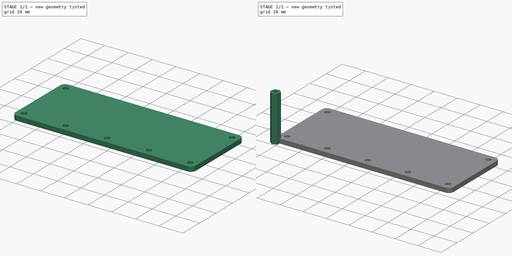
[diagram: build sequence overview — one tinted view per stage of 2, left to right]
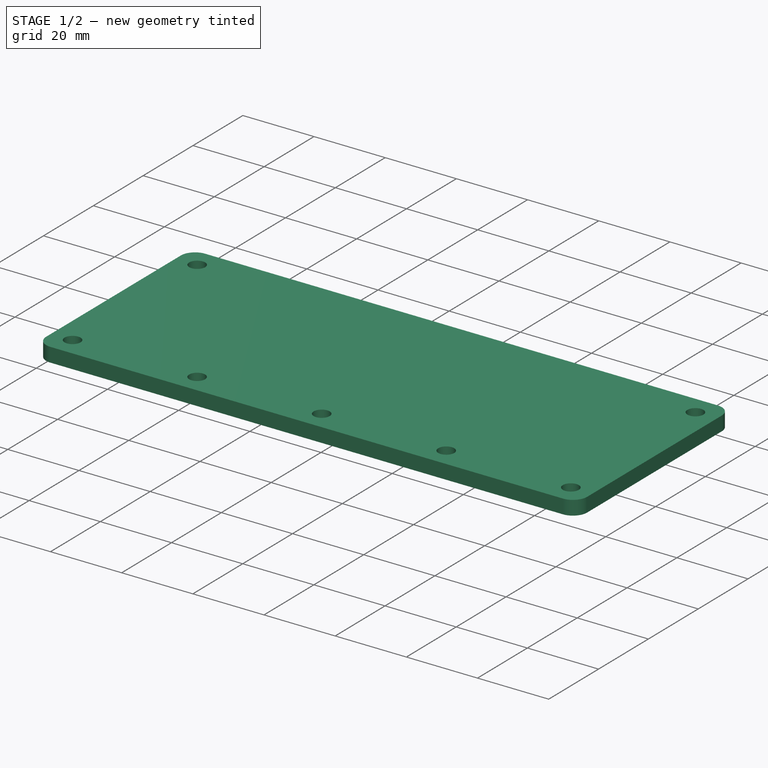
[diagram: stage 1 of 2 — iso view after this stage's code; geometry added in this stage tinted green]
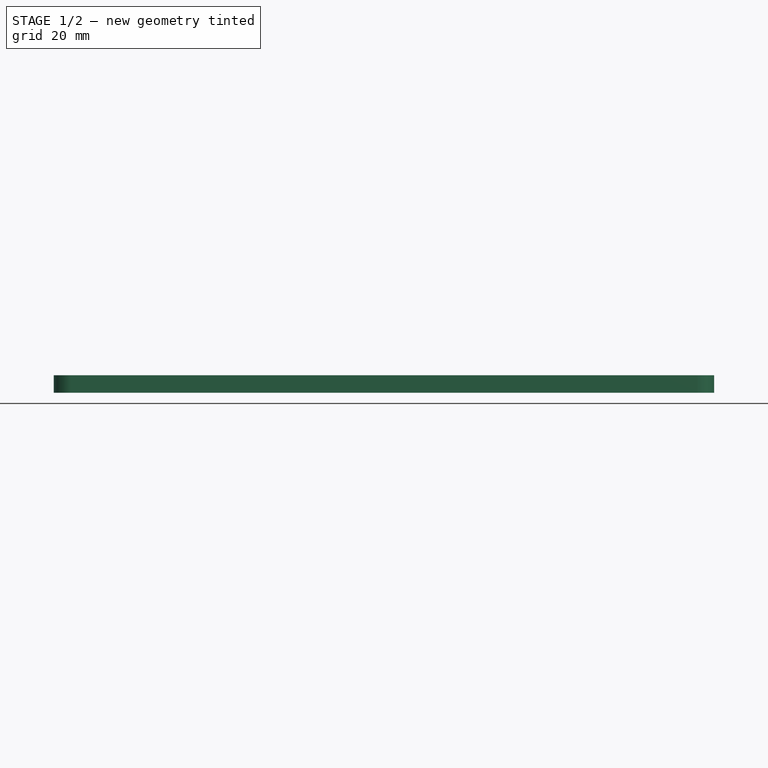
[diagram: stage 1 of 2 — front view after this stage's code; geometry added in this stage tinted green]
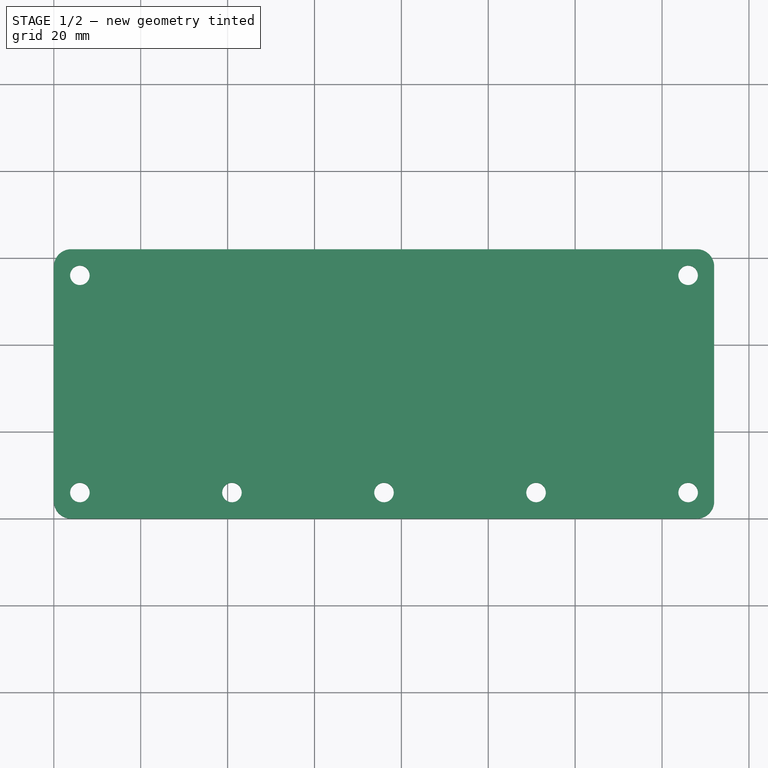
[diagram: stage 1 of 2 — top view after this stage's code; geometry added in this stage tinted green]
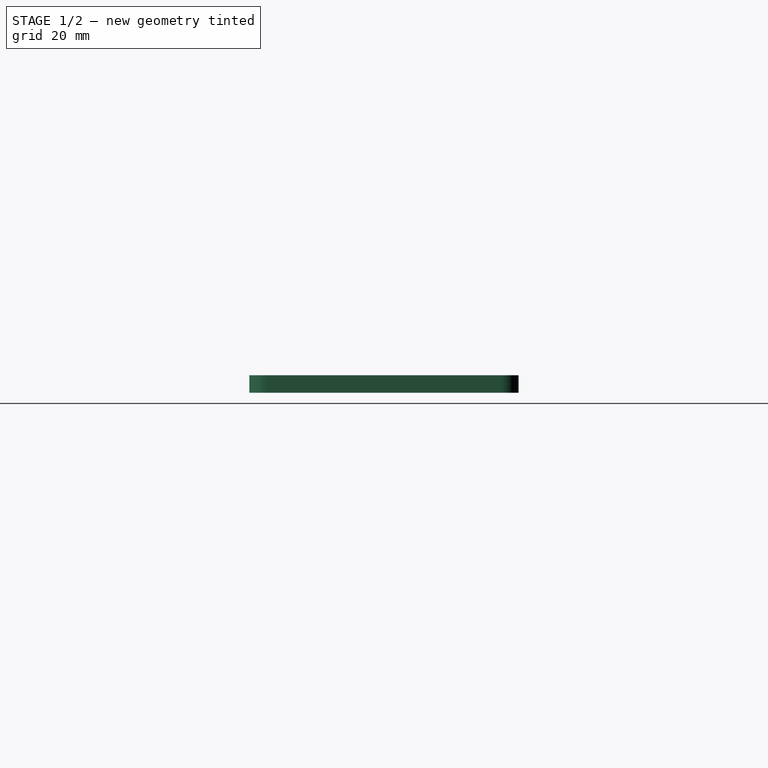
[diagram: stage 1 of 2 — right view after this stage's code; geometry added in this stage tinted green]
FCSTD DOCUMENT  (FreeCAD 0.19R)
Label: Casing
License: All rights reserved
LicenseURL: http://en.wikipedia.org/wiki/All_rights_reserved
objects: Part::Feature×11, App::Part×11, App::Link×6, PartDesign::Body×4, Sketcher::SketchObject×3, PartDesign::Pad×3, TechDraw::DrawSVGTemplate×2, TechDraw::DrawProjGroupItem×2, TechDraw::DrawProjGroup×2, TechDraw::DrawPage×2
note: 24 computed .brp shape members not serialized (recipe doc carries the construction recipe); baked Part::Feature solids carry a one-line shape summary decoded from their .brp

FEATURE [Sketcher::SketchObject] Sketch
  FullyConstrained = true
  MapMode = 5
  Support = -> [XY_Plane011]
  sketch-geometry (20):
    g0: LineSegment StartX=1.24452e-11 StartY=58 StartZ=0 EndX=1.24452e-11 EndY=4 EndZ=0
    g1: Circle CenterX=6 CenterY=56 CenterZ=0 NormalX=0 NormalY=0 NormalZ=1 AngleXU=0 Radius=2.25
    g2: LineSegment StartX=4 StartY=62 StartZ=0 EndX=148 EndY=62 EndZ=0
    g3: ArcOfCircle CenterX=4 CenterY=58 CenterZ=0 NormalX=0 NormalY=0 NormalZ=1 AngleXU=0 Radius=4 StartAngle=1.5708 EndAngle=3.14159
    g4: Circle CenterX=6 CenterY=6 CenterZ=0 NormalX=0 NormalY=0 NormalZ=1 AngleXU=0 Radius=2.25
    g5: LineSegment StartX=4 StartY=0 StartZ=0 EndX=148 EndY=0 EndZ=0
    g6: ArcOfCircle CenterX=4 CenterY=4 CenterZ=0 NormalX=0 NormalY=0 NormalZ=1 AngleXU=0 Radius=4 StartAngle=3.14159 EndAngle=4.71239
    g7: LineSegment StartX=152 StartY=58 StartZ=0 EndX=152 EndY=4 EndZ=0
    g8: ArcOfCircle CenterX=148 CenterY=58 CenterZ=0 NormalX=0 NormalY=0 NormalZ=1 AngleXU=0 Radius=4 StartAngle=7e-16 EndAngle=1.5708
    g9: ArcOfCircle CenterX=148 CenterY=4 CenterZ=0 NormalX=0 NormalY=0 NormalZ=1 AngleXU=0 Radius=4 StartAngle=4.71239 EndAngle=6.28319
    g10: Circle CenterX=146 CenterY=56 CenterZ=0 NormalX=0 NormalY=0 NormalZ=1 AngleXU=0 Radius=2.25
    g11: Circle CenterX=146 CenterY=6 CenterZ=0 NormalX=0 NormalY=0 NormalZ=1 AngleXU=0 Radius=2.25
    g12: Circle CenterX=76 CenterY=6 CenterZ=0 NormalX=0 NormalY=0 NormalZ=1 AngleXU=0 Radius=2.25
    g13: Circle CenterX=41 CenterY=6 CenterZ=0 NormalX=0 NormalY=0 NormalZ=1 AngleXU=0 Radius=2.25
    g14: Circle CenterX=111 CenterY=6 CenterZ=0 NormalX=0 NormalY=0 NormalZ=1 AngleXU=0 Radius=2.25
    g15: Circle CenterX=31 CenterY=23.5 CenterZ=0 NormalX=0 NormalY=0 NormalZ=1 AngleXU=0 Radius=3.5
    g16: Circle CenterX=67 CenterY=23.5 CenterZ=0 NormalX=0 NormalY=0 NormalZ=1 AngleXU=0 Radius=3.5
    g17: Circle CenterX=112 CenterY=23.5 CenterZ=0 NormalX=0 NormalY=0 NormalZ=1 AngleXU=0 Radius=3.5
    g18: LineSegment StartX=1.24452e-11 StartY=4 StartZ=0 EndX=1.24452e-11 EndY=0 EndZ=0
    g19: LineSegment StartX=4 StartY=0 StartZ=0 EndX=1.24452e-11 EndY=0 EndZ=0
  constraints (54):
    c: Diameter(g1) = 4.5
    c: Vertical(g0)
    c: Horizontal(g2)
    c: Tangent(g2,g3) = 1.5708
    c: Tangent(g0,g3) = -1.5708
    c: Radius(g3) = 4
    c: Diameter(g4) = 4.5
    c: Horizontal(g5)
    c: Tangent(g0,g6) = -1.5708
    c: Tangent(g5,g6) = -1.5708
    c: Radius(g6) = 4
    c: Distance(g4,g0) = 6
    c: DistanceY(g0,g0) = 54
    c: Vertical(g7)
    c: Tangent(g2,g8) = 1.5708
    c: Tangent(g7,g8) = 1.5708
    c: Radius(g8) = 4
    c: Tangent(g7,g9) = 1.5708
    c: Tangent(g5,g9) = -1.5708
    c: Radius(g9) = 4
    c: DistanceX(g2,g2) = 144
    c: Diameter(g10) = 4.5
    c: Diameter(g11) = 4.5
    c: Diameter(g12) = 4.5
    c: Diameter(g13) = 4.5
    c: Diameter(g14) = 4.5
    c: Distance(g15,g0) = 31
    c: Distance(g15,g5) = 23.5
    c: Diameter(g15) = 7
    c: Diameter(g16) = 7
    c: Diameter(g17) = 7
    c: Vertical(g18)
    c: Coincident(g18,g0)
    c: Horizontal(g19)
    c: Coincident(g19,g5)
    c: Coincident(g19,g18)
    c: Coincident(g-1,g18)
    c: Distance(g16,g15) = 36
    c: Distance(g16,g17) = 45
    c: Distance(g13,g12) = 35
    c: Distance(g12,g14) = 35
    c: Distance(g10,g11) = 50
    c: Distance(g1,g4) = 50
    c: Distance(g14,g11) = 35
    c: Distance(g4,g13) = 35
    c: Distance(g10,g1) = 140
    c: Vertical(g1,g4)
    c: Horizontal(g4,g13)
    c: Horizontal(g12,g13)
    c: Horizontal(g12,g14)
    c: Horizontal(g11,g14)
    c: Horizontal(g16,g15)
    c: Horizontal(g16,g17)
    c: Distance(g4,g5) = 6
FEATURE [Part::Feature] Part__Feature  label="COMPOUND"
  shape: bbox 16.59 x 34.29 x 13.34 mm, 1177 faces (baked)
FEATURE [App::Part] _301SYZQE  label="7301SYZQE"
  Group = -> [Part__Feature]
  Origin = -> Origin
  Placement = pos=(109,12.5,13.55) rot=(0.57735,0.57735,0.57735;2.0944rad)
FEATURE [Part::Feature] Part__Feature001  label="COMPOUND001"
  shape: bbox 16.59 x 34.29 x 13.34 mm, 1177 faces (baked)
FEATURE [App::Part] _301SYZQE001  label="7301SYZQE001"
  Group = -> [Part__Feature001]
  Origin = -> Origin012
  Placement = pos=(64,12.5,13.55) rot=(0.57735,0.57735,0.57735;2.0944rad)
FEATURE [Part::Feature] Part__Feature002  label="COMPOUND002"
  shape: bbox 16.59 x 34.29 x 13.34 mm, 1177 faces (baked)
FEATURE [App::Part] _301SYZQE002  label="7301SYZQE002"
  Group = -> [Part__Feature002]
  Origin = -> Origin013
  Placement = pos=(28,12.5,13.55) rot=(0.57735,0.57735,0.57735;2.0944rad)
FEATURE [Part::Feature] Part__Feature003  label="COMPOUND003"
  shape: bbox 14.02 x 9.141 x 12.02 mm, 72 faces, 7 solids (baked)
FEATURE [App::Part] FC68131
  Group = -> [Part__Feature003]
  Origin = -> Origin014
  Placement = pos=(127,35.5,-0.15) rot=(0.57735,-0.57735,0.57735;4.18879rad)
FEATURE [Part::Feature] Part__Feature004  label="COMPOUND004"
  shape: bbox 14.02 x 9.141 x 12.02 mm, 72 faces, 7 solids (baked)
FEATURE [App::Part] FC68131001
  Group = -> [Part__Feature004]
  Origin = -> Origin015
  Placement = pos=(55,35.5,-0.15) rot=(0.57735,-0.57735,0.57735;4.18879rad)
FEATURE [Part::Feature] Part__Feature005  label="COMPOUND005"
  shape: bbox 14.02 x 9.141 x 12.02 mm, 72 faces, 7 solids (baked)
FEATURE [App::Part] FC68131002
  Group = -> [Part__Feature005]
  Origin = -> Origin016
  Placement = pos=(73,35.5,-0.15) rot=(0.57735,-0.57735,0.57735;4.18879rad)
FEATURE [Part::Feature] Part__Feature006  label="COMPOUND006"
  shape: bbox 14.02 x 9.141 x 12.02 mm, 72 faces, 7 solids (baked)
FEATURE [App::Part] FC68131003
  Group = -> [Part__Feature006]
  Origin = -> Origin017
  Placement = pos=(91,35.5,-0.15) rot=(0.57735,-0.57735,0.57735;4.18879rad)
FEATURE [Part::Feature] Part__Feature007  label="COMPOUND007"
  shape: bbox 14.02 x 9.141 x 12.02 mm, 72 faces, 7 solids (baked)
FEATURE [App::Part] FC68131004
  Group = -> [Part__Feature007]
  Origin = -> Origin018
  Placement = pos=(19,35.5,-0.15) rot=(0.57735,-0.57735,0.57735;4.18879rad)
FEATURE [Part::Feature] Part__Feature008  label="COMPOUND008"
  shape: bbox 14.02 x 9.141 x 12.02 mm, 72 faces, 7 solids (baked)
FEATURE [App::Part] FC68131005
  Group = -> [Part__Feature008]
  Origin = -> Origin019
  Placement = pos=(109,35.5,-0.15) rot=(0.57735,-0.57735,0.57735;4.18879rad)
FEATURE [Part::Feature] Part__Feature009  label="COMPOUND009"
  shape: bbox 14.02 x 9.141 x 12.02 mm, 72 faces, 7 solids (baked)
FEATURE [App::Part] FC68131006
  Group = -> [Part__Feature009]
  Origin = -> Origin020
  Placement = pos=(37,35.5,-0.15) rot=(0.57735,-0.57735,0.57735;4.18879rad)
FEATURE [Part::Feature] Part__Feature010  label="Audio_Multiplexer PCB"
  shape: bbox 146 x 40 x 1.6 mm, 241 faces (baked)
FEATURE [PartDesign::Pad] Pad
  Direction = (1,1,1)
  Length = 4
  Length2 = 100
  Profile = -> Sketch
  Type = 0
FEATURE [PartDesign::Body] Body  label="Top_Plate"
  Group = -> [Sketch,Pad]
  Origin = -> Origin011
  Placement = pos=(0,0,14.5) rot=(0,0,1;0rad)
  Tip = -> Pad
FEATURE [PartDesign::Body] Body001
  Origin = -> Origin022
FEATURE [App::Part] Audio_Multiplexer_1  label="PCB"
  Group = -> [_301SYZQE,_301SYZQE001,_301SYZQE002,FC68131,FC68131001,FC68131002,FC68131003,FC68131004,FC68131005,FC68131006,Part__Feature010,Body001]
  Origin = -> Origin021
  Placement = pos=(3,11,0) rot=(0,0,1;0rad)
FEATURE [Sketcher::SketchObject] Sketch001
  FullyConstrained = true
  MapMode = 5
  Support = -> [XY_Plane023]
  sketch-geometry (21):
    g0: LineSegment StartX=0 StartY=58 StartZ=0 EndX=0 EndY=4 EndZ=0
    g1: Circle CenterX=6 CenterY=56 CenterZ=0 NormalX=0 NormalY=0 NormalZ=1 AngleXU=0 Radius=2.25
    g2: LineSegment StartX=4 StartY=62 StartZ=0 EndX=148 EndY=62 EndZ=0
    g3: ArcOfCircle CenterX=4 CenterY=58 CenterZ=0 NormalX=0 NormalY=0 NormalZ=1 AngleXU=0 Radius=4 StartAngle=1.5708 EndAngle=3.14159
    g4: Circle CenterX=6 CenterY=6 CenterZ=0 NormalX=0 NormalY=0 NormalZ=1 AngleXU=0 Radius=2.25
    g5: LineSegment StartX=4 StartY=0 StartZ=0 EndX=148 EndY=0 EndZ=0
    g6: ArcOfCircle CenterX=4 CenterY=4 CenterZ=0 NormalX=0 NormalY=0 NormalZ=1 AngleXU=0 Radius=4 StartAngle=3.14159 EndAngle=4.71239
    g7: LineSegment StartX=152 StartY=58 StartZ=0 EndX=152 EndY=4 EndZ=0
    g8: ArcOfCircle CenterX=148 CenterY=58 CenterZ=0 NormalX=0 NormalY=0 NormalZ=1 AngleXU=0 Radius=4 StartAngle=0 EndAngle=1.5708
    g9: ArcOfCircle CenterX=148 CenterY=4 CenterZ=0 NormalX=0 NormalY=0 NormalZ=1 AngleXU=0 Radius=4 StartAngle=4.71239 EndAngle=6.28319
    g10: Circle CenterX=146 CenterY=56 CenterZ=0 NormalX=0 NormalY=0 NormalZ=1 AngleXU=0 Radius=2.25
    g11: Circle CenterX=146 CenterY=6 CenterZ=0 NormalX=0 NormalY=0 NormalZ=1 AngleXU=0 Radius=2.25
    g12: Circle CenterX=76 CenterY=6 CenterZ=0 NormalX=0 NormalY=0 NormalZ=1 AngleXU=0 Radius=2.25
    g13: Circle CenterX=41 CenterY=6 CenterZ=0 NormalX=0 NormalY=0 NormalZ=1 AngleXU=0 Radius=2.25
    g14: Circle CenterX=111 CenterY=6 CenterZ=0 NormalX=0 NormalY=0 NormalZ=1 AngleXU=0 Radius=2.25
    g15: LineSegment StartX=0 StartY=4 StartZ=0 EndX=0 EndY=0 EndZ=0
    g16: LineSegment StartX=4 StartY=0 StartZ=0 EndX=0 EndY=0 EndZ=0
    g17: Circle CenterX=9.5 CenterY=17.5 CenterZ=0 NormalX=0 NormalY=0 NormalZ=1 AngleXU=0 Radius=2.25
    g18: Circle CenterX=9.5 CenterY=44.5 CenterZ=0 NormalX=0 NormalY=0 NormalZ=1 AngleXU=0 Radius=2.25
    g19: Circle CenterX=142.5 CenterY=44.5 CenterZ=0 NormalX=0 NormalY=0 NormalZ=1 AngleXU=0 Radius=2.25
    g20: Circle CenterX=142.5 CenterY=17.5 CenterZ=0 NormalX=0 NormalY=0 NormalZ=1 AngleXU=0 Radius=2.25
  constraints (57):
    c: Diameter(g1) = 4.5
    c: Vertical(g0)
    c: Horizontal(g2)
    c: Tangent(g2,g3) = 1.5708
    c: Tangent(g0,g3) = -1.5708
    c: Radius(g3) = 4
    c: Diameter(g4) = 4.5
    c: Horizontal(g5)
    c: Tangent(g0,g6) = -1.5708
    c: Tangent(g5,g6) = -1.5708
    c: Radius(g6) = 4
    c: Distance(g4,g5) = 6
    c: Distance(g4,g0) = 6
    c: DistanceY(g0,g0) = 54
    c: Vertical(g7)
    c: Tangent(g2,g8) = 1.5708
    c: Tangent(g7,g8) = 1.5708
    c: Radius(g8) = 4
    c: Tangent(g7,g9) = 1.5708
    c: Tangent(g5,g9) = -1.5708
    c: Radius(g9) = 4
    c: DistanceX(g2,g2) = 144
    c: Diameter(g10) = 4.5
    c: Diameter(g11) = 4.5
    c: Diameter(g12) = 4.5
    c: Diameter(g13) = 4.5
    c: Diameter(g14) = 4.5
    c: Vertical(g15)
    c: Coincident(g15,g0)
    c: Horizontal(g16)
    c: Coincident(g16,g5)
    c: Coincident(g15,g16)
    c: Coincident(g-1,g15)
    c: Diameter(g17) = 4.5
    c: Distance(g17,g0) = 9.5
    c: Distance(g17,g5) = 17.5
    c: Diameter(g18) = 4.5
    c: Diameter(g19) = 4.5
    c: Diameter(g20) = 4.5
    c: Distance(g4,g13) = 35
    c: Distance(g12,g13) = 35
    c: Horizontal(g4,g13)
    c: Horizontal(g13,g12)
    c: Distance(g12,g14) = 35
    c: Horizontal(g12,g14)
    c: Distance(g11,g14) = 35
    c: Horizontal(g11,g14)
    c: Distance(g10,g11) = 50
    c: Vertical(g10,g11)
    c: Distance(g20,g17) = 133
    c: Horizontal(g20,g17)
    c: Distance(g19,g20) = 27
    c: Vertical(g19,g20)
    c: Vertical(g18,g17)
    c: Horizontal(g18,g19)
    c: Vertical(g4,g1)
    c: Horizontal(g1,g10)
FEATURE [PartDesign::Pad] Pad001
  Direction = (1,1,1)
  Length = 4
  Length2 = 100
  Profile = -> Sketch001
  Type = 0
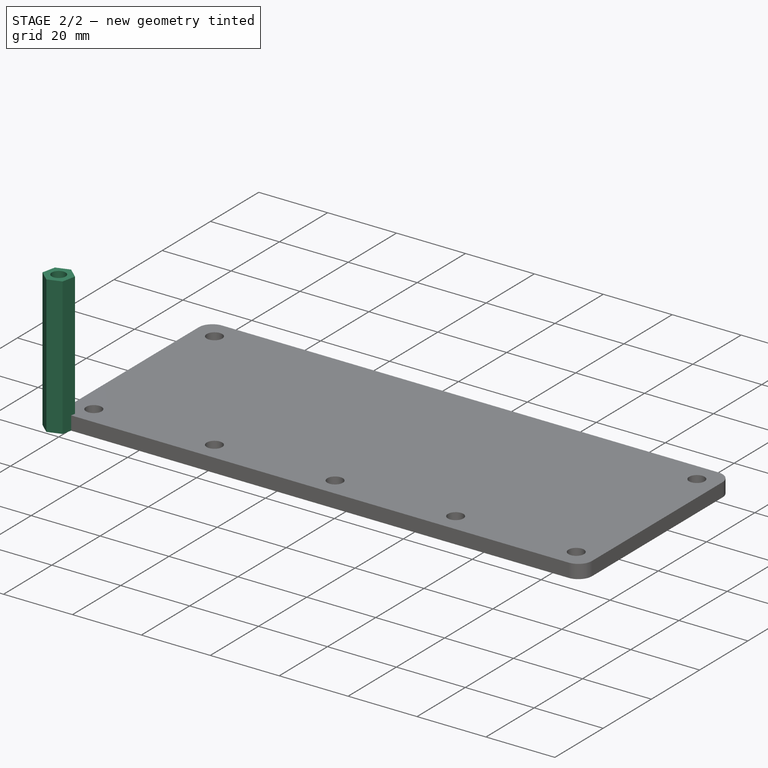
[diagram: stage 2 of 2 — iso view after this stage's code; geometry added in this stage tinted green]
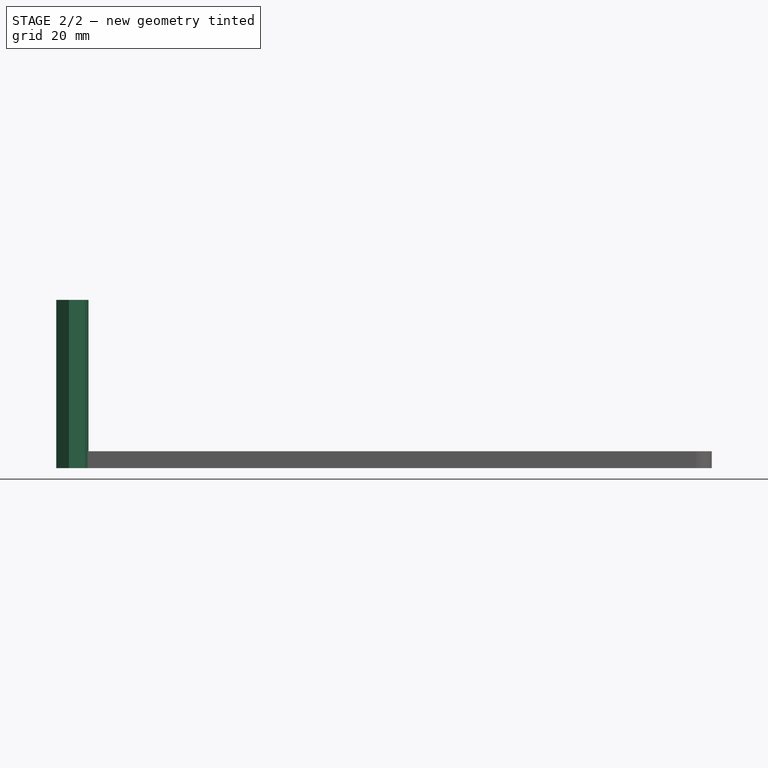
[diagram: stage 2 of 2 — front view after this stage's code; geometry added in this stage tinted green]
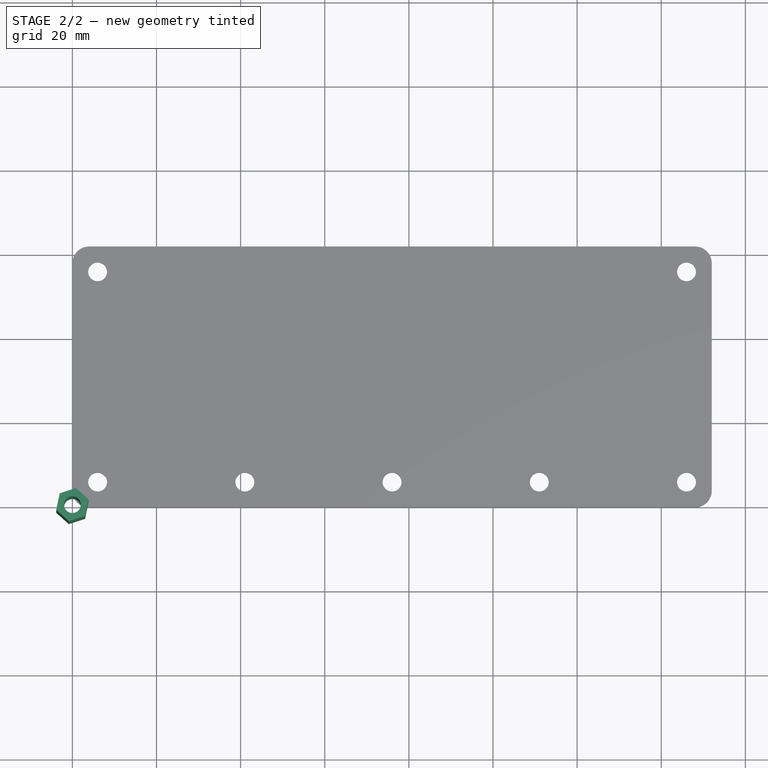
[diagram: stage 2 of 2 — top view after this stage's code; geometry added in this stage tinted green]
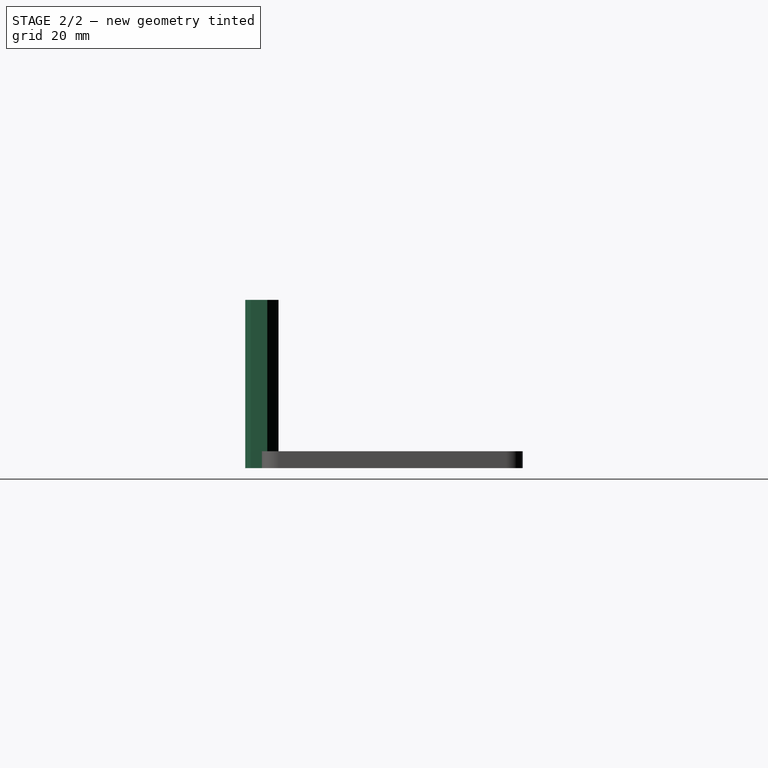
[diagram: stage 2 of 2 — right view after this stage's code; geometry added in this stage tinted green]
FEATURE [PartDesign::Body] Body002  label="Bottom_Plate"
  Group = -> [Sketch001,Pad001]
  Origin = -> Origin023
  Placement = pos=(0,0,-29.5) rot=(0,0,1;0rad)
  Tip = -> Pad001
FEATURE [Sketcher::SketchObject] Sketch002
  FullyConstrained = false
  MapMode = 5
  Support = -> [XY_Plane024]
  sketch-geometry (8):
    g0: LineSegment StartX=0.82718 StartY=3.9559 StartZ=0 EndX=-3.01232 EndY=2.69431 EndZ=0
    g1: LineSegment StartX=-3.01232 StartY=2.69431 StartZ=0 EndX=-3.8395 EndY=-1.26159 EndZ=0
    g2: LineSegment StartX=-3.8395 StartY=-1.26159 StartZ=0 EndX=-0.82718 EndY=-3.9559 EndZ=0
    g3: LineSegment StartX=-0.82718 StartY=-3.9559 StartZ=0 EndX=3.01232 EndY=-2.69431 EndZ=0
    g4: LineSegment StartX=3.01232 StartY=-2.69431 StartZ=0 EndX=3.8395 EndY=1.26159 EndZ=0
    g5: LineSegment StartX=3.8395 StartY=1.26159 StartZ=0 EndX=0.82718 EndY=3.9559 EndZ=0
    g6: Circle CenterX=-9.8e-15 CenterY=4.12e-14 CenterZ=0 NormalX=0 NormalY=0 NormalZ=1 AngleXU=0 Radius=4.04145
    g7: Circle CenterX=-9.8e-15 CenterY=4.12e-14 CenterZ=0 NormalX=0 NormalY=0 NormalZ=1 AngleXU=0 Radius=2
  constraints (17):
    c: Coincident(g0,g1)
    c: Coincident(g1,g2)
    c: Coincident(g2,g3)
    c: Coincident(g3,g4)
    c: Coincident(g4,g5)
    c: Coincident(g5,g0)
    c: Equal(g0, g1-g5) x5
    c: PointOnObject(g0,g6)
    c: PointOnObject(g1,g6)
    c: PointOnObject(g2,g6)
    c: PointOnObject(g3,g6)
    c: PointOnObject(g4,g6)
    c: PointOnObject(g5,g6)
    c: Distance(g6,g2) = 3.5
    c: Diameter(g7) = 4
    c: Coincident(g7,g6)
    c: Coincident(g7,g-1)
FEATURE [PartDesign::Pad] Pad002
  Direction = (1,1,1)
  Length = 40
  Length2 = 100
  Profile = -> Sketch002
  Type = 0
FEATURE [PartDesign::Body] Body003  label="Hex_Standoff_1"
  Group = -> [Sketch002,Pad002]
  Origin = -> Origin024
  Placement = pos=(6,6,-25.5) rot=(0,0,1;0rad)
  Tip = -> Pad002
FEATURE [App::Link] Link  label="Hex_Standoff_2"
  LinkPlacement = pos=(41,6,-25.5) rot=(0,0,1;0rad)
  LinkedObject = -> Body003
  Placement = pos=(41,6,-25.5) rot=(0,0,1;0rad)
FEATURE [App::Link] Link001  label="Hex_Standoff_3"
  LinkPlacement = pos=(76,6,-25.5) rot=(0,0,1;0rad)
  LinkedObject = -> Body003
  Placement = pos=(76,6,-25.5) rot=(0,0,1;0rad)
FEATURE [App::Link] Link002  label="Hex_Standoff_4"
  LinkPlacement = pos=(111,6,-25.5) rot=(0,0,1;0rad)
  LinkedObject = -> Body003
  Placement = pos=(111,6,-25.5) rot=(0,0,1;0rad)
FEATURE [App::Link] Link003  label="Hex_Standoff_5"
  LinkPlacement = pos=(146,6,-25.5) rot=(0,0,1;0rad)
  LinkedObject = -> Body003
  Placement = pos=(146,6,-25.5) rot=(0,0,1;0rad)
FEATURE [App::Link] Link004  label="Hex_Standoff_6"
  LinkPlacement = pos=(6,56,-25.5) rot=(0,0,1;0rad)
  LinkedObject = -> Body003
  Placement = pos=(6,56,-25.5) rot=(0,0,1;0rad)
FEATURE [App::Link] Link005  label="Hex_Standoff_7"
  LinkPlacement = pos=(146,56,-25.5) rot=(0,0,1;0rad)
  LinkedObject = -> Body003
  Placement = pos=(146,56,-25.5) rot=(0,0,1;0rad)
FEATURE [TechDraw::DrawSVGTemplate] Template
  EditableTexts = Designed_by_Name=Adrien RICCIARDI; Drawing_number=1; FC-Date=15/08/2022; FC-SC=1:1; FC-SH=1/2; FC-Title=Audio Multiplexer; Subtitle=Casing top plate; Weight=0.284
  Height = 210
  Orientation = 1
  Width = 297
FEATURE [TechDraw::DrawProjGroupItem] ProjItem  label="Front"
  CoarseView = false
  Direction = (0,0,1)
  Focus = 100
  HardHidden = false
  IsoCount = 0
  IsoHidden = false
  IsoVisible = false
  LockPosition = true
  Perspective = false
  Rotation = 0
  RotationVector = (1,0,0)
  ScaleType = 2
  SeamHidden = false
  SeamVisible = true
  SmoothHidden = false
  SmoothVisible = true
  Source = -> [Body]
  Type = 0
  X = 0
  XDirection = (1,0,0)
  Y = 0
FEATURE [TechDraw::DrawProjGroup] ProjGroup
  Anchor = -> ProjItem
  AutoDistribute = true
  LockPosition = false
  ProjectionType = 0
  Rotation = 0
  ScaleType = 0
  Source = -> [Body]
  Views = -> [ProjItem]
  X = 148.5
  Y = 124
  spacingX = 15
  spacingY = 15
FEATURE [TechDraw::DrawPage] Page  label="Page_Top_Plate"
  KeepUpdated = true
  NextBalloonIndex = 1
  ProjectionType = 0
  Template = -> Template
  Views = -> [ProjGroup]
FEATURE [TechDraw::DrawSVGTemplate] Template001
  EditableTexts = Designed_by_Name=Adrien RICCIARDI; Drawing_number=1; FC-Date=15/08/2022; FC-SC=1:1; FC-SH=2/2; FC-Title=Audio Multiplexer; Subtitle=Casing bottom plate; Weight=0.284
  Height = 210
  Orientation = 1
  Width = 297
FEATURE [TechDraw::DrawProjGroupItem] ProjItem001  label="Front001"
  CoarseView = false
  Direction = (0,0,1)
  Focus = 100
  HardHidden = false
  IsoCount = 0
  IsoHidden = false
  IsoVisible = false
  LockPosition = true
  Perspective = false
  Rotation = 0
  RotationVector = (1,0,0)
  ScaleType = 2
  SeamHidden = false
  SeamVisible = true
  SmoothHidden = false
  SmoothVisible = true
  Source = -> [Body002]
  Type = 0
  X = 0
  XDirection = (1,0,0)
  Y = 0
FEATURE [TechDraw::DrawProjGroup] ProjGroup001
  Anchor = -> ProjItem001
  AutoDistribute = true
  LockPosition = false
  ProjectionType = 0
  Rotation = 0
  ScaleType = 0
  Source = -> [Body002]
  Views = -> [ProjItem001]
  X = 148.5
  Y = 124
  spacingX = 15
  spacingY = 15
FEATURE [TechDraw::DrawPage] Page001  label="Page_Bottom_Plate"
  KeepUpdated = true
  NextBalloonIndex = 1
  ProjectionType = 0
  Template = -> Template001
  Views = -> [ProjGroup001]
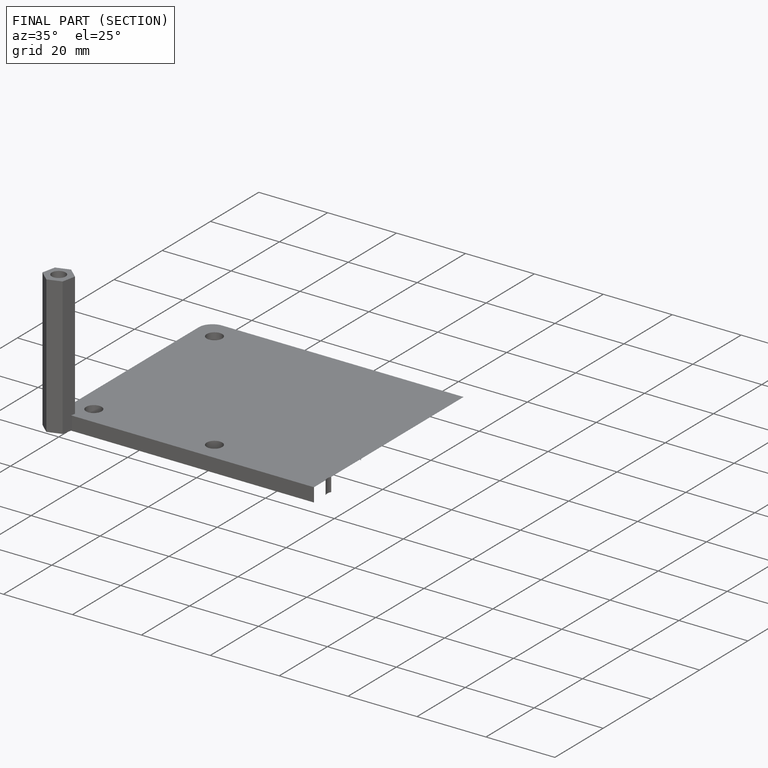
[diagram: finished part — half-section view (interior)]
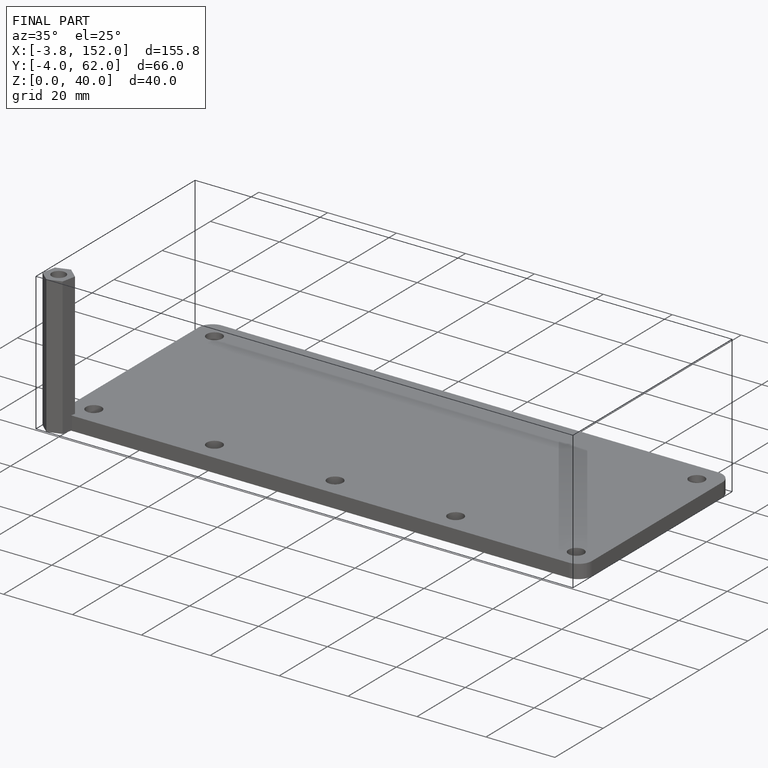
[diagram: finished part — iso view with bounding-box wireframe]
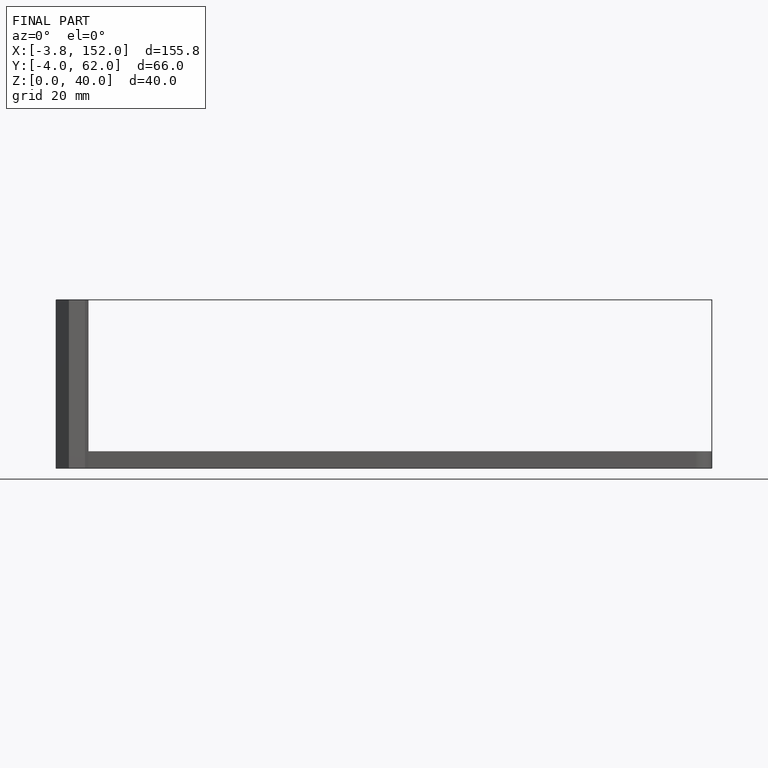
[diagram: finished part — front view with bounding-box wireframe]
